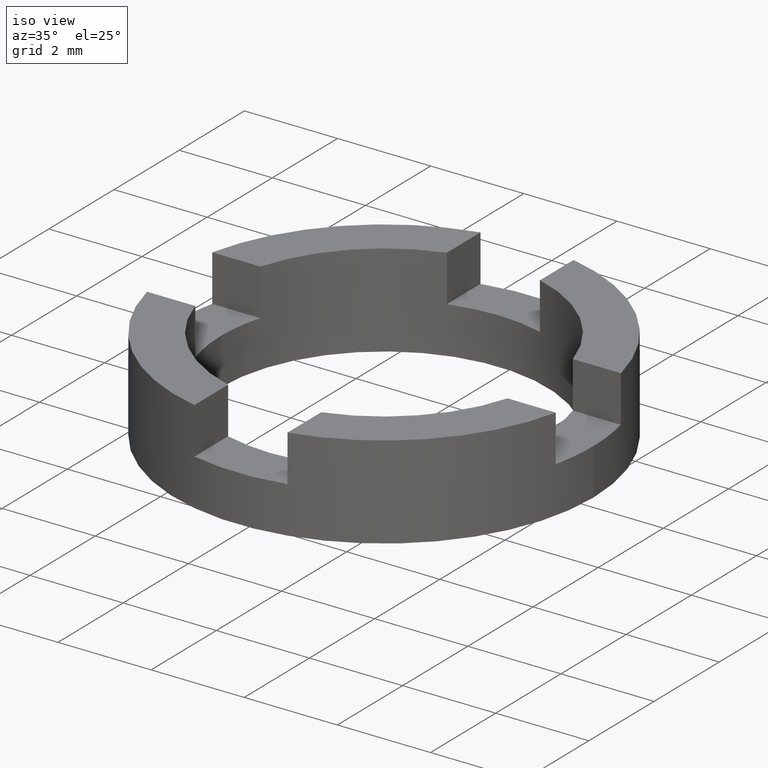
[diagram: clean part render]
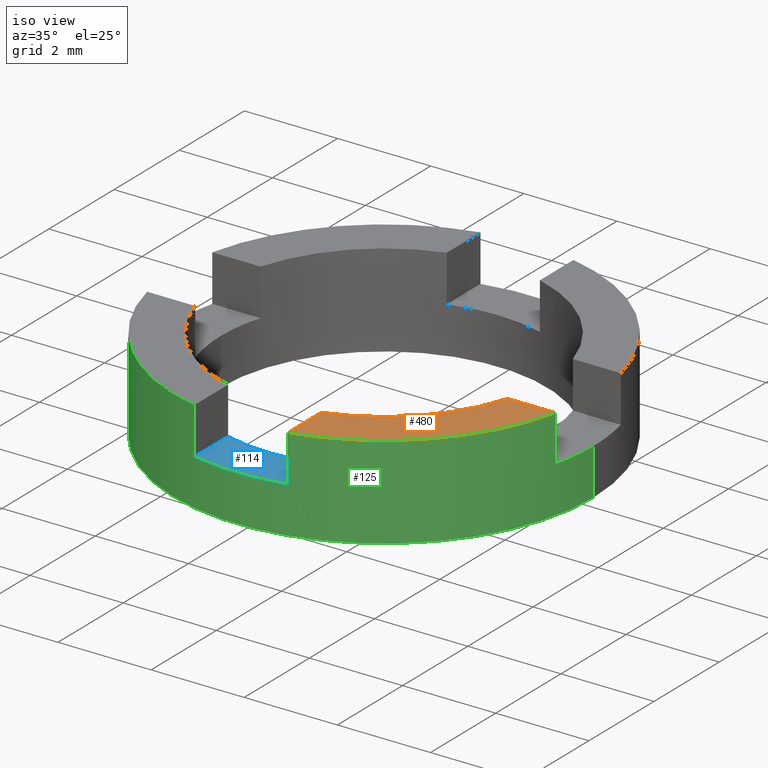
[diagram: same view with three faces highlighted in distinct colors, each labeled with its STEP entity id]
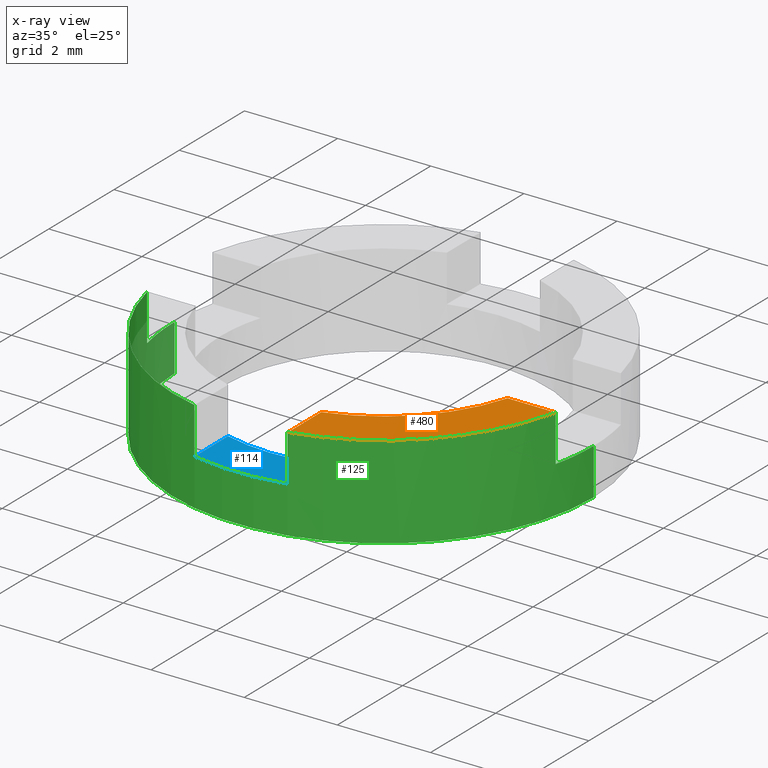
[diagram: x-ray of the same camera — body ghosted, the three highlighted faces saturated]
A machine part, iso view with three faces highlighted in distinct colors.
The next image is the same camera in x-ray (body ghosted, the three faces saturated) — at least one of them is partly hidden behind the body in this view.
Their STEP definitions:

[orange] entity #480 — the highlighted planar face has unit normal (0, 0, 1).
#41 = DIRECTION ( 'NONE',  ( -1.279323200775837468E-16, 1.000000000000000000, -0.000000000000000000 ) ) ;
#98 = DIRECTION ( 'NONE',  ( 0.000000000000000000, 0.000000000000000000, 1.000000000000000000 ) ) ;
#150 = AXIS2_PLACEMENT_3D ( 'NONE', #339, #760, #663 ) ;
#168 = CARTESIAN_POINT ( 'NONE',  ( 0.000000000000000000, 0.000000000000000000, 2.000000000000000000 ) ) ;
#187 = EDGE_LOOP ( 'NONE', ( #317, #428, #445, #616 ) ) ;
#219 = CARTESIAN_POINT ( 'NONE',  ( 1.000000000000347500, -4.387482193695982247, 2.000000000000000000 ) ) ;
#232 = LINE ( 'NONE', #315, #379 ) ;
#289 = DIRECTION ( 'NONE',  ( 0.000000000000000000, 0.000000000000000000, 1.000000000000000000 ) ) ;
#291 = PLANE ( 'NONE',  #575 ) ;
#308 = VERTEX_POINT ( 'NONE', #456 ) ;
#314 = EDGE_CURVE ( 'NONE', #308, #588, #712, .T. ) ;
#315 = CARTESIAN_POINT ( 'NONE',  ( 2.805037895306199403, -0.9999999999999547029, 2.000000000000000000 ) ) ;
#317 = ORIENTED_EDGE ( 'NONE', *, *, #670, .F. ) ;
#331 = VERTEX_POINT ( 'NONE', #219 ) ;
#339 = CARTESIAN_POINT ( 'NONE',  ( 0.000000000000000000, 0.000000000000000000, 2.000000000000000000 ) ) ;
#344 = DIRECTION ( 'NONE',  ( 1.000000000000000000, 0.000000000000000000, 0.000000000000000000 ) ) ;
#352 = LINE ( 'NONE', #594, #591 ) ;
#379 = VECTOR ( 'NONE', #673, 1000.000000000000000 ) ;
#404 = CARTESIAN_POINT ( 'NONE',  ( 3.354101966249698030, -0.9999999999999547029, 2.000000000000000000 ) ) ;
#426 = AXIS2_PLACEMENT_3D ( 'NONE', #744, #98, #344 ) ;
#428 = ORIENTED_EDGE ( 'NONE', *, *, #314, .F. ) ;
#445 = ORIENTED_EDGE ( 'NONE', *, *, #452, .F. ) ;
#452 = EDGE_CURVE ( 'NONE', #331, #308, #352, .T. ) ;
#456 = CARTESIAN_POINT ( 'NONE',  ( 1.000000000000347278, -3.354101966249581235, 2.000000000000000000 ) ) ;
#480 = ADVANCED_FACE ( 'NONE', ( #598 ), #291, .T. ) ;
#511 = CIRCLE ( 'NONE', #150, 4.500000000000000000 ) ;
#541 = DIRECTION ( 'NONE',  ( 1.000000000000000000, 0.000000000000000000, -0.000000000000000000 ) ) ;
#548 = CARTESIAN_POINT ( 'NONE',  ( 4.387482193696071064, -0.9999999999999544809, 2.000000000000000000 ) ) ;
#562 = EDGE_CURVE ( 'NONE', #331, #678, #511, .T. ) ;
#575 = AXIS2_PLACEMENT_3D ( 'NONE', #168, #289, #541 ) ;
#588 = VERTEX_POINT ( 'NONE', #404 ) ;
#591 = VECTOR ( 'NONE', #41, 1000.000000000000000 ) ;
#594 = CARTESIAN_POINT ( 'NONE',  ( 1.000000000000347278, -2.805037895306153217, 2.000000000000000000 ) ) ;
#598 = FACE_OUTER_BOUND ( 'NONE', #187, .T. ) ;
#616 = ORIENTED_EDGE ( 'NONE', *, *, #562, .T. ) ;
#663 = DIRECTION ( 'NONE',  ( 1.000000000000000000, 0.000000000000000000, 0.000000000000000000 ) ) ;
#670 = EDGE_CURVE ( 'NONE', #588, #678, #232, .T. ) ;
#673 = DIRECTION ( 'NONE',  ( 1.000000000000000000, 1.279323200775837468E-16, 0.000000000000000000 ) ) ;
#678 = VERTEX_POINT ( 'NONE', #548 ) ;
#712 = CIRCLE ( 'NONE', #426, 3.500000000000000000 ) ;
#744 = CARTESIAN_POINT ( 'NONE',  ( 0.000000000000000000, 0.000000000000000000, 2.000000000000000000 ) ) ;
#760 = DIRECTION ( 'NONE',  ( 0.000000000000000000, 0.000000000000000000, 1.000000000000000000 ) ) ;

[blue] entity #114 — the highlighted planar face has unit normal (0, 0, -1).
#20 = ORIENTED_EDGE ( 'NONE', *, *, #303, .F. ) ;
#31 = VERTEX_POINT ( 'NONE', #51 ) ;
#33 = DIRECTION ( 'NONE',  ( -1.000000000000000000, 0.000000000000000000, 0.000000000000000000 ) ) ;
#43 = CARTESIAN_POINT ( 'NONE',  ( 0.000000000000000000, 0.000000000000000000, 1.000000000000000000 ) ) ;
#46 = VECTOR ( 'NONE', #294, 1000.000000000000000 ) ;
#51 = CARTESIAN_POINT ( 'NONE',  ( 1.000000000000347278, -3.354101966249581235, 1.000000000000000000 ) ) ;
#59 = VECTOR ( 'NONE', #481, 1000.000000000000000 ) ;
#64 = VERTEX_POINT ( 'NONE', #780 ) ;
#73 = DIRECTION ( 'NONE',  ( 0.000000000000000000, 0.000000000000000000, -1.000000000000000000 ) ) ;
#79 = CARTESIAN_POINT ( 'NONE',  ( -0.9999999999996526112, -4.387482193696139454, 1.000000000000000000 ) ) ;
#114 = ADVANCED_FACE ( 'NONE', ( #662 ), #606, .F. ) ;
#158 = CARTESIAN_POINT ( 'NONE',  ( 0.000000000000000000, 0.000000000000000000, 1.000000000000000000 ) ) ;
#172 = AXIS2_PLACEMENT_3D ( 'NONE', #158, #513, #33 ) ;
#276 = LINE ( 'NONE', #361, #46 ) ;
#294 = DIRECTION ( 'NONE',  ( -1.279323200775837468E-16, 1.000000000000000000, -0.000000000000000000 ) ) ;
#303 = EDGE_CURVE ( 'NONE', #64, #383, #528, .T. ) ;
#310 = EDGE_LOOP ( 'NONE', ( #376, #454, #655, #20 ) ) ;
#357 = DIRECTION ( 'NONE',  ( 0.000000000000000000, 0.000000000000000000, -1.000000000000000000 ) ) ;
#361 = CARTESIAN_POINT ( 'NONE',  ( 1.000000000000347278, -2.805037895306153217, 1.000000000000000000 ) ) ;
#363 = VERTEX_POINT ( 'NONE', #708 ) ;
#376 = ORIENTED_EDGE ( 'NONE', *, *, #553, .T. ) ;
#380 = CARTESIAN_POINT ( 'NONE',  ( 0.000000000000000000, 0.000000000000000000, 1.000000000000000000 ) ) ;
#383 = VERTEX_POINT ( 'NONE', #79 ) ;
#410 = EDGE_CURVE ( 'NONE', #31, #363, #483, .T. ) ;
#436 = DIRECTION ( 'NONE',  ( -1.000000000000000000, 0.000000000000000000, -0.000000000000000000 ) ) ;
#454 = ORIENTED_EDGE ( 'NONE', *, *, #410, .T. ) ;
#481 = DIRECTION ( 'NONE',  ( 1.279323200775837961E-16, -1.000000000000000000, 0.000000000000000000 ) ) ;
#483 = CIRCLE ( 'NONE', #667, 3.500000000000000000 ) ;
#508 = AXIS2_PLACEMENT_3D ( 'NONE', #380, #73, #436 ) ;
#513 = DIRECTION ( 'NONE',  ( 0.000000000000000000, 0.000000000000000000, -1.000000000000000000 ) ) ;
#528 = CIRCLE ( 'NONE', #172, 4.500000000000000000 ) ;
#537 = EDGE_CURVE ( 'NONE', #363, #383, #709, .T. ) ;
#553 = EDGE_CURVE ( 'NONE', #64, #31, #276, .T. ) ;
#593 = CARTESIAN_POINT ( 'NONE',  ( -0.9999999999996528333, -2.805037895306154105, 1.000000000000000000 ) ) ;
#606 = PLANE ( 'NONE',  #508 ) ;
#655 = ORIENTED_EDGE ( 'NONE', *, *, #537, .T. ) ;
#662 = FACE_OUTER_BOUND ( 'NONE', #310, .T. ) ;
#667 = AXIS2_PLACEMENT_3D ( 'NONE', #43, #357, #772 ) ;
#708 = CARTESIAN_POINT ( 'NONE',  ( -0.9999999999996528333, -3.354101966249788180, 1.000000000000000000 ) ) ;
#709 = LINE ( 'NONE', #593, #59 ) ;
#772 = DIRECTION ( 'NONE',  ( -1.000000000000000000, 0.000000000000000000, 0.000000000000000000 ) ) ;
#780 = CARTESIAN_POINT ( 'NONE',  ( 1.000000000000347500, -4.387482193695982247, 1.000000000000000000 ) ) ;

[green] entity #125 — the highlighted cylindrical surface (partial cylindrical patch) has radius 4.5 mm, axis along (-0, -0, -1).
#3 = DIRECTION ( 'NONE',  ( 0.000000000000000000, 0.000000000000000000, 1.000000000000000000 ) ) ;
#10 = CIRCLE ( 'NONE', #609, 4.500000000000000000 ) ;
#12 = ORIENTED_EDGE ( 'NONE', *, *, #728, .T. ) ;
#16 = EDGE_CURVE ( 'NONE', #642, #689, #493, .T. ) ;
#18 = CARTESIAN_POINT ( 'NONE',  ( 4.387482193696071064, -0.9999999999999544809, 1.000000000000000000 ) ) ;
#24 = VERTEX_POINT ( 'NONE', #235 ) ;
#25 = EDGE_CURVE ( 'NONE', #383, #689, #608, .T. ) ;
#27 = ORIENTED_EDGE ( 'NONE', *, *, #220, .T. ) ;
#33 = DIRECTION ( 'NONE',  ( -1.000000000000000000, 0.000000000000000000, 0.000000000000000000 ) ) ;
#50 = EDGE_CURVE ( 'NONE', #302, #504, #117, .T. ) ;
#53 = DIRECTION ( 'NONE',  ( 0.000000000000000000, 0.000000000000000000, 1.000000000000000000 ) ) ;
#64 = VERTEX_POINT ( 'NONE', #780 ) ;
#75 = EDGE_CURVE ( 'NONE', #128, #678, #777, .T. ) ;
#79 = CARTESIAN_POINT ( 'NONE',  ( -0.9999999999996526112, -4.387482193696139454, 1.000000000000000000 ) ) ;
#91 = ORIENTED_EDGE ( 'NONE', *, *, #562, .F. ) ;
#103 = EDGE_CURVE ( 'NONE', #24, #574, #113, .T. ) ;
#106 = DIRECTION ( 'NONE',  ( 1.000000000000000000, 0.000000000000000000, 0.000000000000000000 ) ) ;
#108 = CARTESIAN_POINT ( 'NONE',  ( -4.500000000000000000, 0.000000000000000000, 2.000000000000000000 ) ) ;
#113 = LINE ( 'NONE', #108, #747 ) ;
#117 = LINE ( 'NONE', #543, #425 ) ;
#121 = CIRCLE ( 'NONE', #237, 4.500000000000000000 ) ;
#125 = ADVANCED_FACE ( 'NONE', ( #615 ), #567, .T. ) ;
#128 = VERTEX_POINT ( 'NONE', #18 ) ;
#137 = ORIENTED_EDGE ( 'NONE', *, *, #781, .T. ) ;
#150 = AXIS2_PLACEMENT_3D ( 'NONE', #339, #760, #663 ) ;
#155 = ORIENTED_EDGE ( 'NONE', *, *, #50, .F. ) ;
#158 = CARTESIAN_POINT ( 'NONE',  ( 0.000000000000000000, 0.000000000000000000, 1.000000000000000000 ) ) ;
#165 = CARTESIAN_POINT ( 'NONE',  ( -0.9999999999996526112, -4.387482193696139454, 2.000000000000000000 ) ) ;
#172 = AXIS2_PLACEMENT_3D ( 'NONE', #158, #513, #33 ) ;
#179 = DIRECTION ( 'NONE',  ( -0.000000000000000000, -0.000000000000000000, -1.000000000000000000 ) ) ;
#184 = CARTESIAN_POINT ( 'NONE',  ( 1.000000000000347500, -4.387482193695982247, 2.000000000000000000 ) ) ;
#190 = ORIENTED_EDGE ( 'NONE', *, *, #103, .T. ) ;
#191 = CARTESIAN_POINT ( 'NONE',  ( 0.000000000000000000, 0.000000000000000000, 1.000000000000000000 ) ) ;
#192 = DIRECTION ( 'NONE',  ( -1.000000000000000000, 0.000000000000000000, 0.000000000000000000 ) ) ;
#194 = ORIENTED_EDGE ( 'NONE', *, *, #243, .T. ) ;
#219 = CARTESIAN_POINT ( 'NONE',  ( 1.000000000000347500, -4.387482193695982247, 2.000000000000000000 ) ) ;
#220 = EDGE_CURVE ( 'NONE', #302, #128, #682, .T. ) ;
#235 = CARTESIAN_POINT ( 'NONE',  ( -4.500000000000000000, 0.000000000000000000, 1.000000000000000000 ) ) ;
#237 = AXIS2_PLACEMENT_3D ( 'NONE', #191, #424, #368 ) ;
#243 = EDGE_CURVE ( 'NONE', #574, #504, #10, .T. ) ;
#250 = CARTESIAN_POINT ( 'NONE',  ( -0.9999999999996526112, -4.387482193696139454, 2.000000000000000000 ) ) ;
#262 = ORIENTED_EDGE ( 'NONE', *, *, #25, .T. ) ;
#279 = AXIS2_PLACEMENT_3D ( 'NONE', #299, #486, #106 ) ;
#288 = VERTEX_POINT ( 'NONE', #524 ) ;
#298 = VECTOR ( 'NONE', #53, 1000.000000000000000 ) ;
#299 = CARTESIAN_POINT ( 'NONE',  ( 0.000000000000000000, 0.000000000000000000, 2.000000000000000000 ) ) ;
#302 = VERTEX_POINT ( 'NONE', #685 ) ;
#303 = EDGE_CURVE ( 'NONE', #64, #383, #528, .T. ) ;
#309 = DIRECTION ( 'NONE',  ( -1.000000000000000000, 0.000000000000000000, 0.000000000000000000 ) ) ;
#313 = VECTOR ( 'NONE', #741, 1000.000000000000000 ) ;
#325 = ORIENTED_EDGE ( 'NONE', *, *, #303, .T. ) ;
#331 = VERTEX_POINT ( 'NONE', #219 ) ;
#339 = CARTESIAN_POINT ( 'NONE',  ( 0.000000000000000000, 0.000000000000000000, 2.000000000000000000 ) ) ;
#364 = CARTESIAN_POINT ( 'NONE',  ( -4.387482193695992017, -1.000000000000302425, 2.000000000000000000 ) ) ;
#368 = DIRECTION ( 'NONE',  ( -1.000000000000000000, 0.000000000000000000, 0.000000000000000000 ) ) ;
#372 = DIRECTION ( 'NONE',  ( 1.000000000000000000, 0.000000000000000000, 0.000000000000000000 ) ) ;
#383 = VERTEX_POINT ( 'NONE', #79 ) ;
#409 = ORIENTED_EDGE ( 'NONE', *, *, #75, .T. ) ;
#415 = AXIS2_PLACEMENT_3D ( 'NONE', #738, #427, #192 ) ;
#424 = DIRECTION ( 'NONE',  ( 0.000000000000000000, -0.000000000000000000, -1.000000000000000000 ) ) ;
#425 = VECTOR ( 'NONE', #489, 1000.000000000000000 ) ;
#427 = DIRECTION ( 'NONE',  ( 0.000000000000000000, 0.000000000000000000, -1.000000000000000000 ) ) ;
#466 = CARTESIAN_POINT ( 'NONE',  ( -4.500000000000000000, 0.000000000000000000, 0.000000000000000000 ) ) ;
#470 = VECTOR ( 'NONE', #3, 1000.000000000000000 ) ;
#478 = DIRECTION ( 'NONE',  ( -0.000000000000000000, -0.000000000000000000, -1.000000000000000000 ) ) ;
#485 = VECTOR ( 'NONE', #179, 1000.000000000000000 ) ;
#486 = DIRECTION ( 'NONE',  ( 0.000000000000000000, 0.000000000000000000, 1.000000000000000000 ) ) ;
#489 = DIRECTION ( 'NONE',  ( -0.000000000000000000, -0.000000000000000000, -1.000000000000000000 ) ) ;
#493 = CIRCLE ( 'NONE', #279, 4.500000000000000000 ) ;
#502 = LINE ( 'NONE', #364, #313 ) ;
#504 = VERTEX_POINT ( 'NONE', #661 ) ;
#511 = CIRCLE ( 'NONE', #150, 4.500000000000000000 ) ;
#513 = DIRECTION ( 'NONE',  ( 0.000000000000000000, 0.000000000000000000, -1.000000000000000000 ) ) ;
#524 = CARTESIAN_POINT ( 'NONE',  ( -4.387482193695992017, -1.000000000000302425, 1.000000000000000000 ) ) ;
#528 = CIRCLE ( 'NONE', #172, 4.500000000000000000 ) ;
#531 = ORIENTED_EDGE ( 'NONE', *, *, #16, .F. ) ;
#543 = CARTESIAN_POINT ( 'NONE',  ( 4.500000000000000000, 5.510910596163088569E-16, 2.000000000000000000 ) ) ;
#548 = CARTESIAN_POINT ( 'NONE',  ( 4.387482193696071064, -0.9999999999999544809, 2.000000000000000000 ) ) ;
#556 = DIRECTION ( 'NONE',  ( -0.000000000000000000, -0.000000000000000000, -1.000000000000000000 ) ) ;
#562 = EDGE_CURVE ( 'NONE', #331, #678, #511, .T. ) ;
#567 = CYLINDRICAL_SURFACE ( 'NONE', #659, 4.500000000000000000 ) ;
#574 = VERTEX_POINT ( 'NONE', #466 ) ;
#608 = LINE ( 'NONE', #165, #470 ) ;
#609 = AXIS2_PLACEMENT_3D ( 'NONE', #688, #671, #372 ) ;
#615 = FACE_OUTER_BOUND ( 'NONE', #672, .T. ) ;
#642 = VERTEX_POINT ( 'NONE', #770 ) ;
#659 = AXIS2_PLACEMENT_3D ( 'NONE', #674, #556, #309 ) ;
#661 = CARTESIAN_POINT ( 'NONE',  ( 4.500000000000000000, 5.510910596163088569E-16, 0.000000000000000000 ) ) ;
#663 = DIRECTION ( 'NONE',  ( 1.000000000000000000, 0.000000000000000000, 0.000000000000000000 ) ) ;
#666 = CARTESIAN_POINT ( 'NONE',  ( 4.387482193696071064, -0.9999999999999544809, 2.000000000000000000 ) ) ;
#671 = DIRECTION ( 'NONE',  ( 0.000000000000000000, 0.000000000000000000, 1.000000000000000000 ) ) ;
#672 = EDGE_LOOP ( 'NONE', ( #155, #27, #409, #91, #12, #325, #262, #531, #736, #137, #190, #194 ) ) ;
#674 = CARTESIAN_POINT ( 'NONE',  ( 0.000000000000000000, 0.000000000000000000, 2.000000000000000000 ) ) ;
#678 = VERTEX_POINT ( 'NONE', #548 ) ;
#682 = CIRCLE ( 'NONE', #415, 4.500000000000000000 ) ;
#685 = CARTESIAN_POINT ( 'NONE',  ( 4.500000000000000000, 5.510910596163088569E-16, 1.000000000000000000 ) ) ;
#688 = CARTESIAN_POINT ( 'NONE',  ( 0.000000000000000000, 0.000000000000000000, 0.000000000000000000 ) ) ;
#689 = VERTEX_POINT ( 'NONE', #250 ) ;
#728 = EDGE_CURVE ( 'NONE', #331, #64, #729, .T. ) ;
#729 = LINE ( 'NONE', #184, #485 ) ;
#736 = ORIENTED_EDGE ( 'NONE', *, *, #757, .T. ) ;
#738 = CARTESIAN_POINT ( 'NONE',  ( 0.000000000000000000, 0.000000000000000000, 1.000000000000000000 ) ) ;
#741 = DIRECTION ( 'NONE',  ( -0.000000000000000000, -0.000000000000000000, -1.000000000000000000 ) ) ;
#747 = VECTOR ( 'NONE', #478, 1000.000000000000000 ) ;
#757 = EDGE_CURVE ( 'NONE', #642, #288, #502, .T. ) ;
#760 = DIRECTION ( 'NONE',  ( 0.000000000000000000, 0.000000000000000000, 1.000000000000000000 ) ) ;
#770 = CARTESIAN_POINT ( 'NONE',  ( -4.387482193695992017, -1.000000000000302425, 2.000000000000000000 ) ) ;
#777 = LINE ( 'NONE', #666, #298 ) ;
#780 = CARTESIAN_POINT ( 'NONE',  ( 1.000000000000347500, -4.387482193695982247, 1.000000000000000000 ) ) ;
#781 = EDGE_CURVE ( 'NONE', #288, #24, #121, .T. ) ;